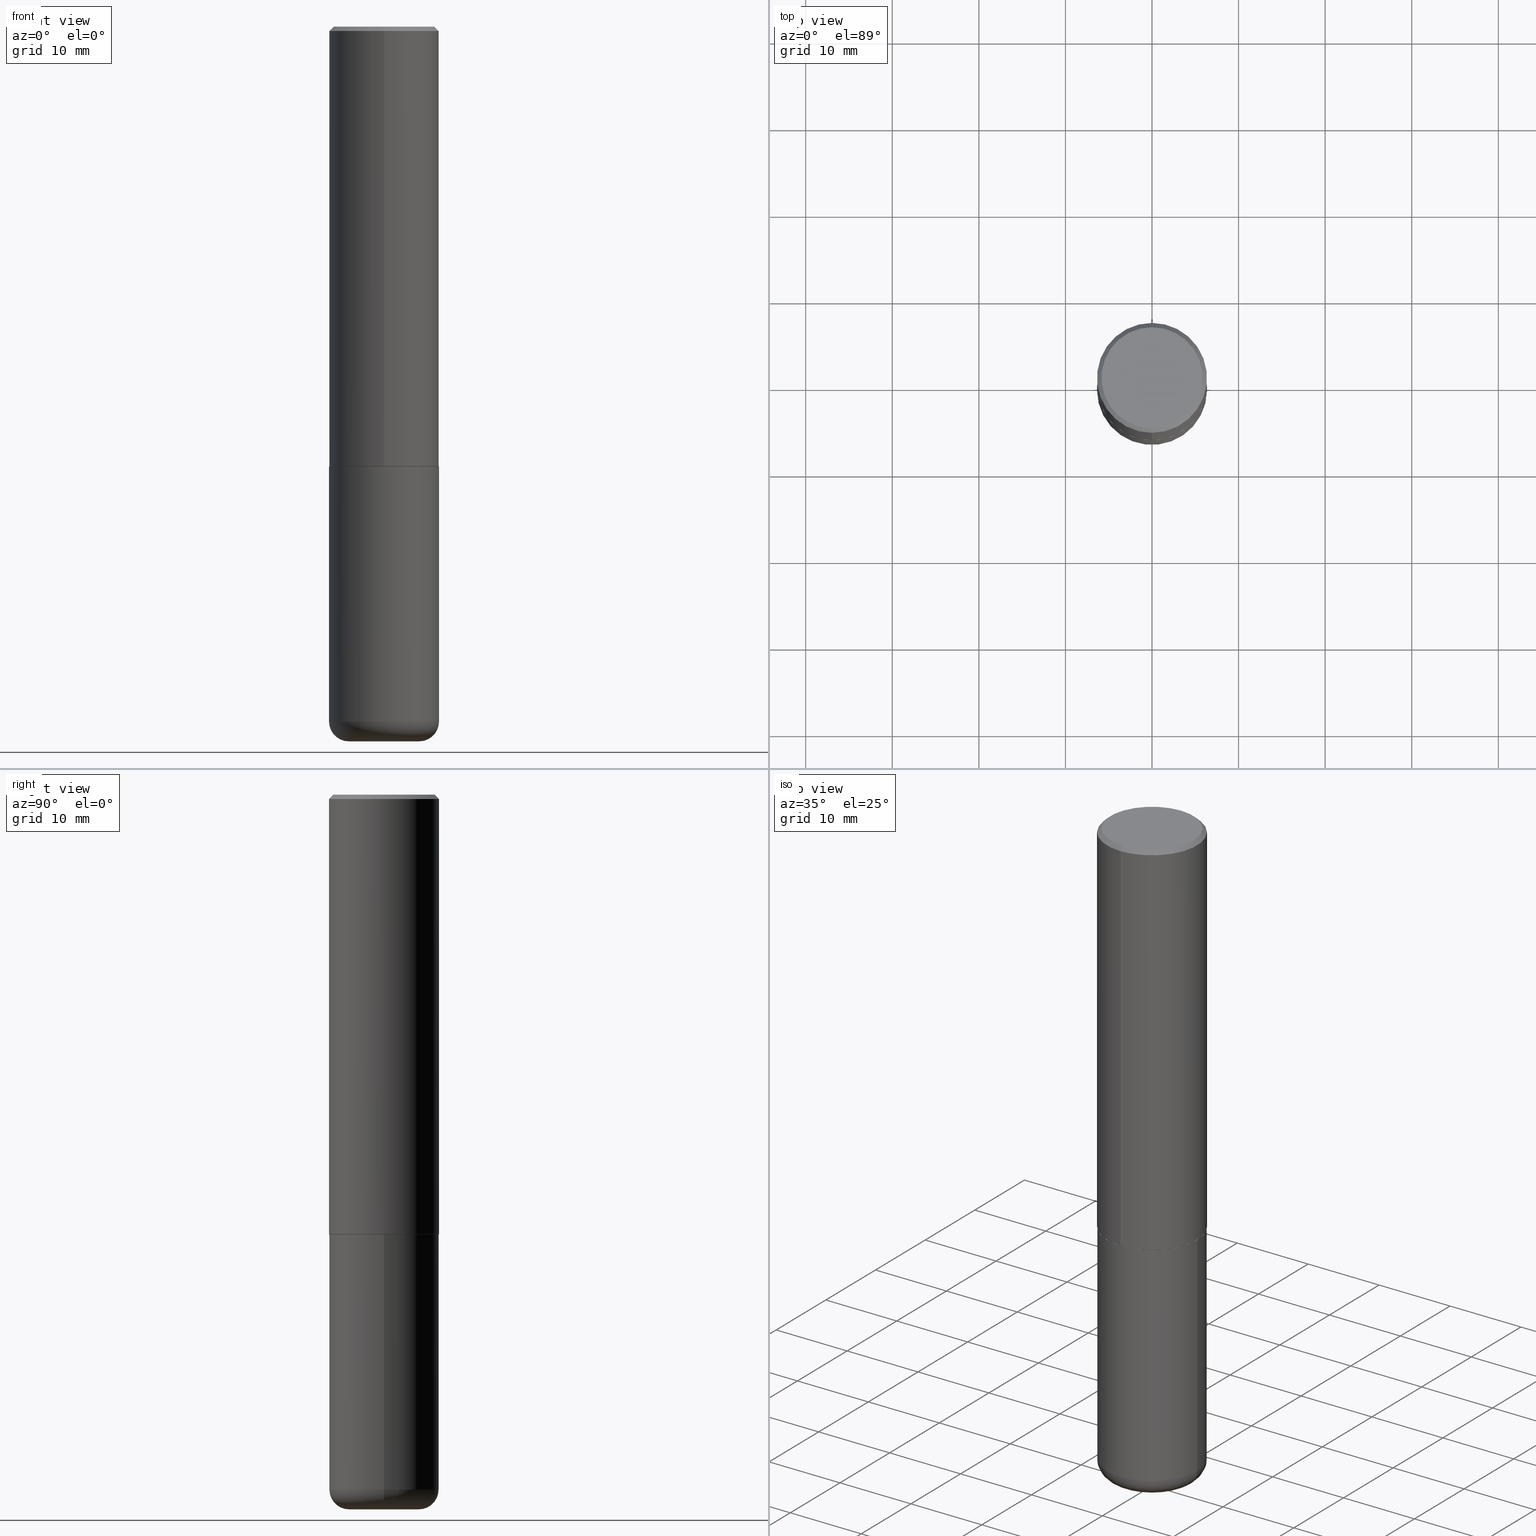
[diagram: canonical four-view strip — front | top / right | iso, engineering-drawing reading convention]
A machine part, canonical four-view strip (front | top / right | iso — engineering-drawing reading convention). The complete STEP part file that produces these views, byte-faithful:
ISO-10303-21;
HEADER;
FILE_DESCRIPTION (( 'STEP AP203' ),
    '1' );
FILE_NAME ('36612.STEP',
    '2024-03-01T16:58:26',
    ( '' ),
    ( '' ),
    'SwSTEP 2.0',
    'SolidWorks 2023',
    '' );
FILE_SCHEMA (( 'CONFIG_CONTROL_DESIGN' ));
ENDSEC;

DATA;
#1 = CARTESIAN_POINT ( 'NONE',  ( 0.000000000000000000, 0.000000000000000000, 0.000000000000000000 ) ) ;
#2 = EDGE_CURVE ( 'NONE', #13, #339, #274, .T. ) ;
#3 = APPLICATION_CONTEXT ( 'configuration controlled 3d designs of mechanical parts and assemblies' ) ;
#4 = DIRECTION ( 'NONE',  ( -6.982962677686266711E-15, -1.000000000000000000, 3.494126405222933371E-15 ) ) ;
#5 = ORIENTED_EDGE ( 'NONE', *, *, #278, .F. ) ;
#6 = CIRCLE ( 'NONE', #346, 0.1600000000000000033 ) ;
#7 = ORGANIZATION ( 'UNSPECIFIED', 'UNSPECIFIED', '' ) ;
#8 = EDGE_LOOP ( 'NONE', ( #305, #44, #117, #342 ) ) ;
#9 = CARTESIAN_POINT ( 'NONE',  ( 1.776356839400276103E-15, 0.2499999999999932276, -1.999000000000000776 ) ) ;
#10 = ORIENTED_EDGE ( 'NONE', *, *, #153, .T. ) ;
#11 = AXIS2_PLACEMENT_3D ( 'NONE', #387, #326, #294 ) ;
#12 = CIRCLE ( 'NONE', #359, 0.1600000000000000033 ) ;
#13 = VERTEX_POINT ( 'NONE', #133 ) ;
#14 = EDGE_LOOP ( 'NONE', ( #312, #29, #80, #74 ) ) ;
#15 = DIRECTION ( 'NONE',  ( -2.443621766204130368E-29, 3.494126405222933371E-15, 1.000000000000000000 ) ) ;
#16 = ORIENTED_EDGE ( 'NONE', *, *, #26, .F. ) ;
#17 = CARTESIAN_POINT ( 'NONE',  ( -1.738757706743831360E-15, -0.2490000000000069935, -1.999999999999999112 ) ) ;
#18 = PRODUCT_DEFINITION ( 'UNKNOWN', '', #57, #119 ) ;
#19 = CARTESIAN_POINT ( 'NONE',  ( 1.675911042644704366E-15, 0.2300000000000000377, -7.987721954438231638E-16 ) ) ;
#20 = FACE_OUTER_BOUND ( 'NONE', #335, .T. ) ;
#21 = DIRECTION ( 'NONE',  ( 0.000000000000000000, 0.000000000000000000, 1.000000000000000000 ) ) ;
#22 = CARTESIAN_POINT ( 'NONE',  ( 4.887243532408272857E-31, -6.988252810445882815E-17, -0.02000000000000004552 ) ) ;
#23 = CIRCLE ( 'NONE', #94, 0.2500000000000000555 ) ;
#24 = LOCAL_TIME ( 11, 58, 26.00000000000000000, #95 ) ;
#25 = DIRECTION ( 'NONE',  ( 2.438088387897960049E-29, -3.491481338843145188E-15, -1.000000000000000000 ) ) ;
#26 = EDGE_CURVE ( 'NONE', #279, #315, #327, .T. ) ;
#27 = APPROVAL_STATUS ( 'not_yet_approved' ) ;
#28 = LINE ( 'NONE', #73, #317 ) ;
#29 = ORIENTED_EDGE ( 'NONE', *, *, #287, .T. ) ;
#30 = ADVANCED_FACE ( 'NONE', ( #61 ), #378, .T. ) ;
#31 =( LENGTH_UNIT ( ) NAMED_UNIT ( * ) SI_UNIT ( $, .METRE. ) );
#32 = DIRECTION ( 'NONE',  ( -6.982962677686265133E-15, -1.000000000000000000, 3.500180241882336472E-15 ) ) ;
#33 = DATE_AND_TIME ( #68, #213 ) ;
#34 = AXIS2_PLACEMENT_3D ( 'NONE', #405, #281, #81 ) ;
#35 = FACE_OUTER_BOUND ( 'NONE', #374, .T. ) ;
#36 = APPROVAL_PERSON_ORGANIZATION ( #195, #114, #406 ) ;
#37 = DIRECTION ( 'NONE',  ( -2.445468806185136597E-29, 3.491481338843145583E-15, 1.000000000000000000 ) ) ;
#38 = ADVANCED_FACE ( 'NONE', ( #161 ), #165, .T. ) ;
#39 = CARTESIAN_POINT ( 'NONE',  ( -1.745740669421519346E-15, -0.2500000000000072164, -1.998999999999999000 ) ) ;
#40 = DIRECTION ( 'NONE',  ( -2.443621766204130368E-29, 3.494126405222933371E-15, 1.000000000000000000 ) ) ;
#41 = TOROIDAL_SURFACE ( 'NONE', #302, 0.1600000000000000033, 0.08999999999999967748 ) ;
#42 = CC_DESIGN_APPROVAL ( #217, ( #270 ) ) ;
#43 = LOCAL_TIME ( 11, 58, 26.00000000000000000, #412 ) ;
#44 = ORIENTED_EDGE ( 'NONE', *, *, #396, .T. ) ;
#45 = VERTEX_POINT ( 'NONE', #190 ) ;
#46 = ADVANCED_FACE ( 'NONE', ( #320 ), #154, .T. ) ;
#47 = ORIENTED_EDGE ( 'NONE', *, *, #417, .T. ) ;
#48 = CARTESIAN_POINT ( 'NONE',  ( 4.890937612370273194E-29, -6.982962677686291165E-15, -2.000000000000000000 ) ) ;
#49 = CIRCLE ( 'NONE', #228, 0.08999999999999964972 ) ;
#50 = ORIENTED_EDGE ( 'NONE', *, *, #299, .T. ) ;
#51 = AXIS2_PLACEMENT_3D ( 'NONE', #97, #21, #189 ) ;
#52 = DIRECTION ( 'NONE',  ( -2.445468806185136597E-29, 3.491481338843145583E-15, 1.000000000000000000 ) ) ;
#53 = VERTEX_POINT ( 'NONE', #350 ) ;
#54 = DIRECTION ( 'NONE',  ( -6.982962677686265922E-15, -1.000000000000000000, 3.494126405222933371E-15 ) ) ;
#55 = LINE ( 'NONE', #347, #227 ) ;
#56 = AXIS2_PLACEMENT_3D ( 'NONE', #1, #69, #188 ) ;
#57 = PRODUCT_DEFINITION_FORMATION_WITH_SPECIFIED_SOURCE ( 'ANY', '', #183, .NOT_KNOWN. ) ;
#58 = DIRECTION ( 'NONE',  ( -6.982962677686265133E-15, -1.000000000000000000, 3.291383124896702687E-15 ) ) ;
#59 = PERSON_AND_ORGANIZATION_ROLE ( 'classification_officer' ) ;
#60 = DIMENSIONAL_EXPONENTS ( 1.000000000000000000, 0.000000000000000000, 0.000000000000000000, 0.000000000000000000, 0.000000000000000000, 0.000000000000000000, 0.000000000000000000 ) ;
#61 = FACE_OUTER_BOUND ( 'NONE', #111, .T. ) ;
#62 = CARTESIAN_POINT ( 'NONE',  ( 4.884799910642056120E-29, -6.984758684040643933E-15, -1.998999999999999888 ) ) ;
#63 = EDGE_LOOP ( 'NONE', ( #146, #109 ) ) ;
#64 = CIRCLE ( 'NONE', #140, 0.2500000000000000555 ) ;
#65 = PERSON_AND_ORGANIZATION_ROLE ( 'design_supplier' ) ;
#66 = CARTESIAN_POINT ( 'NONE',  ( 0.1600000000000000033, -1.246458837967002615E-14, -3.249999999999999556 ) ) ;
#67 = ADVANCED_FACE ( 'NONE', ( #35 ), #250, .T. ) ;
#68 = CALENDAR_DATE ( 2024, 1, 3 ) ;
#69 = DIRECTION ( 'NONE',  ( -2.445468806185136597E-29, 3.491481338843145583E-15, 1.000000000000000000 ) ) ;
#70 = DIRECTION ( 'NONE',  ( 1.000000000000000000, -6.982962677686266711E-15, 4.876176775795935793E-29 ) ) ;
#71 = AXIS2_PLACEMENT_3D ( 'NONE', #200, #169, #306 ) ;
#72 = EDGE_CURVE ( 'NONE', #172, #136, #328, .T. ) ;
#73 = CARTESIAN_POINT ( 'NONE',  ( -0.2500000000000000000, 1.776356839400250465E-15, -1.229733772563726445E-29 ) ) ;
#74 = ORIENTED_EDGE ( 'NONE', *, *, #232, .F. ) ;
#75 = CARTESIAN_POINT ( 'NONE',  ( 4.887243532408272857E-31, -6.988252810445882815E-17, -0.02000000000000004552 ) ) ;
#76 = ORIENTED_EDGE ( 'NONE', *, *, #234, .T. ) ;
#77 = FACE_OUTER_BOUND ( 'NONE', #401, .T. ) ;
#78 = ORIENTED_EDGE ( 'NONE', *, *, #376, .T. ) ;
#79 = EDGE_CURVE ( 'NONE', #247, #13, #196, .T. ) ;
#80 = ORIENTED_EDGE ( 'NONE', *, *, #259, .T. ) ;
#81 = DIRECTION ( 'NONE',  ( 6.982962677686265922E-15, 1.000000000000000000, -3.494126405222933371E-15 ) ) ;
#82 = VECTOR ( 'NONE', #271, 39.37007874015748143 ) ;
#83 = ORIENTED_EDGE ( 'NONE', *, *, #330, .T. ) ;
#84 = LINE ( 'NONE', #121, #255 ) ;
#85 = CARTESIAN_POINT ( 'NONE',  ( 4.890937612370273194E-29, -6.982962677686291165E-15, -2.000000000000000000 ) ) ;
#86 = AXIS2_PLACEMENT_3D ( 'NONE', #130, #261, #389 ) ;
#87 = VECTOR ( 'NONE', #343, 39.37007874015748143 ) ;
#88 = APPROVAL_DATE_TIME ( #33, #269 ) ;
#89 = ORIENTED_EDGE ( 'NONE', *, *, #234, .F. ) ;
#90 = APPROVAL_STATUS ( 'not_yet_approved' ) ;
#91 = CARTESIAN_POINT ( 'NONE',  ( 7.947773620101692818E-29, -1.134731435124022127E-14, -3.249999999999999556 ) ) ;
#92 = PERSON_AND_ORGANIZATION_ROLE ( 'creator' ) ;
#93 = CARTESIAN_POINT ( 'NONE',  ( -0.1600000000000000033, -9.733585082684075330E-15, -3.249999999999999556 ) ) ;
#94 = AXIS2_PLACEMENT_3D ( 'NONE', #388, #156, #152 ) ;
#95 = COORDINATED_UNIVERSAL_TIME_OFFSET ( 5, 0, .BEHIND. ) ;
#96 = CARTESIAN_POINT ( 'NONE',  ( 0.1600000000000000033, -1.215035505917414131E-14, -3.160000000000000142 ) ) ;
#97 = CARTESIAN_POINT ( 'NONE',  ( 0.000000000000000000, 0.000000000000000000, 0.000000000000000000 ) ) ;
#98 = DIRECTION ( 'NONE',  ( -2.443621766204130368E-29, 3.494126405222933371E-15, 1.000000000000000000 ) ) ;
#99 = ADVANCED_FACE ( 'NONE', ( #197 ), #264, .T. ) ;
#100 = CIRCLE ( 'NONE', #332, 0.2500000000000000000 ) ;
#101 = LINE ( 'NONE', #300, #82 ) ;
#102 = ORIENTED_EDGE ( 'NONE', *, *, #79, .F. ) ;
#103 = ADVANCED_BREP_SHAPE_REPRESENTATION ( '36612', ( #380, #375, #51 ), #163 ) ;
#104 = VERTEX_POINT ( 'NONE', #356 ) ;
#105 = CALENDAR_DATE ( 2024, 1, 3 ) ;
#106 = ORIENTED_EDGE ( 'NONE', *, *, #299, .F. ) ;
#107 = CLOSED_SHELL ( 'NONE', ( #135, #30, #318, #38, #256, #99 ) ) ;
#108 = AXIS2_PLACEMENT_3D ( 'NONE', #62, #254, #187 ) ;
#109 = ORIENTED_EDGE ( 'NONE', *, *, #153, .F. ) ;
#110 = FACE_OUTER_BOUND ( 'NONE', #307, .T. ) ;
#111 = EDGE_LOOP ( 'NONE', ( #360, #50, #138, #272 ) ) ;
#112 = CARTESIAN_POINT ( 'NONE',  ( -1.191724463922560587E-46, 1.704042734735616643E-32, 4.876877757451635874E-18 ) ) ;
#113 = ORIENTED_EDGE ( 'NONE', *, *, #79, .T. ) ;
#114 = APPROVAL ( #90, 'UNSPECIFIED' ) ;
#115 = DIRECTION ( 'NONE',  ( -6.982962677686266711E-15, -1.000000000000000000, 3.278217592397113101E-15 ) ) ;
#116 = CIRCLE ( 'NONE', #393, 0.2500000000000000555 ) ;
#117 = ORIENTED_EDGE ( 'NONE', *, *, #122, .T. ) ;
#118 = CC_DESIGN_APPROVAL ( #114, ( #57 ) ) ;
#119 = DESIGN_CONTEXT ( 'detailed design', #151, 'design' ) ;
#120 = DIRECTION ( 'NONE',  ( 5.024295867788490741E-15, 0.7071067811866103003, 0.7071067811864847341 ) ) ;
#121 = CARTESIAN_POINT ( 'NONE',  ( -1.715124499442882496E-15, -0.2500000000000001110, -0.01999999999999917122 ) ) ;
#122 = EDGE_CURVE ( 'NONE', #339, #13, #64, .T. ) ;
#123 = DATE_AND_TIME ( #260, #310 ) ;
#124 = CC_DESIGN_DATE_AND_TIME_ASSIGNMENT ( #408, #336, ( #270 ) ) ;
#125 = AXIS2_PLACEMENT_3D ( 'NONE', #22, #265, #132 ) ;
#126 = CARTESIAN_POINT ( 'NONE',  ( 0.000000000000000000, 0.000000000000000000, 0.000000000000000000 ) ) ;
#127 = PERSON_AND_ORGANIZATION ( #334, #7 ) ;
#128 = CARTESIAN_POINT ( 'NONE',  ( 0.2499999999999998612, -1.277882170016590626E-14, -3.160000000000000142 ) ) ;
#129 = MECHANICAL_CONTEXT ( 'NONE', #3, 'mechanical' ) ;
#130 = CARTESIAN_POINT ( 'NONE',  ( 4.887243532408272857E-31, -6.988252810445882815E-17, -0.02000000000000004552 ) ) ;
#131 = AXIS2_PLACEMENT_3D ( 'NONE', #112, #341, #377 ) ;
#132 = DIRECTION ( 'NONE',  ( 6.982962677686265133E-15, 1.000000000000000000, -3.500180241882336472E-15 ) ) ;
#133 = CARTESIAN_POINT ( 'NONE',  ( 1.745740669421567269E-15, 0.2499999999999999722, -0.02000000000000092329 ) ) ;
#134 = EDGE_CURVE ( 'NONE', #136, #45, #23, .T. ) ;
#135 = ADVANCED_FACE ( 'NONE', ( #258 ), #357, .T. ) ;
#136 = VERTEX_POINT ( 'NONE', #128 ) ;
#137 = PRODUCT_RELATED_PRODUCT_CATEGORY ( 'detail', '', ( #183 ) ) ;
#138 = ORIENTED_EDGE ( 'NONE', *, *, #134, .F. ) ;
#139 = AXIS2_PLACEMENT_3D ( 'NONE', #159, #262, #290 ) ;
#140 = AXIS2_PLACEMENT_3D ( 'NONE', #324, #98, #32 ) ;
#141 = ORIENTED_EDGE ( 'NONE', *, *, #2, .F. ) ;
#142 = FACE_OUTER_BOUND ( 'NONE', #177, .T. ) ;
#143 = VERTEX_POINT ( 'NONE', #93 ) ;
#144 = APPROVAL_DATE_TIME ( #267, #217 ) ;
#145 = CARTESIAN_POINT ( 'NONE',  ( -1.715124499442882496E-15, -0.2500000000000001110, -0.01999999999999917122 ) ) ;
#146 = ORIENTED_EDGE ( 'NONE', *, *, #223, .F. ) ;
#147 = CARTESIAN_POINT ( 'NONE',  ( 1.745740669421567269E-15, 0.2499999999999999722, -0.02000000000000092329 ) ) ;
#148 = ADVANCED_FACE ( 'NONE', ( #409 ), #226, .T. ) ;
#149 = PLANE ( 'NONE',  #340 ) ;
#150 = COORDINATED_UNIVERSAL_TIME_OFFSET ( 5, 0, .BEHIND. ) ;
#151 = APPLICATION_CONTEXT ( 'configuration controlled 3d designs of mechanical parts and assemblies' ) ;
#152 = DIRECTION ( 'NONE',  ( 1.000000000000000000, -6.982962677686269077E-15, 0.000000000000000000 ) ) ;
#153 = EDGE_CURVE ( 'NONE', #143, #172, #12, .T. ) ;
#154 = CONICAL_SURFACE ( 'NONE', #416, 0.2489999999999999991, 0.7853981633975336552 ) ;
#155 =( CONVERSION_BASED_UNIT ( 'INCH', #230 ) LENGTH_UNIT ( ) NAMED_UNIT ( #60 ) );
#156 = DIRECTION ( 'NONE',  ( -2.445468806185136597E-29, 3.491481338843145583E-15, 1.000000000000000000 ) ) ;
#157 = CC_DESIGN_PERSON_AND_ORGANIZATION_ASSIGNMENT ( #292, #59, ( #270 ) ) ;
#158 = SECURITY_CLASSIFICATION_LEVEL ( 'unclassified' ) ;
#159 = CARTESIAN_POINT ( 'NONE',  ( 4.887243532408260736E-29, -6.988252810445867531E-15, -2.000000000000000000 ) ) ;
#160 = ORIENTED_EDGE ( 'NONE', *, *, #278, .T. ) ;
#161 = FACE_OUTER_BOUND ( 'NONE', #14, .T. ) ;
#162 = AXIS2_PLACEMENT_3D ( 'NONE', #329, #40, #331 ) ;
#163 =( GEOMETRIC_REPRESENTATION_CONTEXT ( 3 ) GLOBAL_UNCERTAINTY_ASSIGNED_CONTEXT ( ( #248 ) ) GLOBAL_UNIT_ASSIGNED_CONTEXT ( ( #155, #383, #385 ) ) REPRESENTATION_CONTEXT ( 'NONE', 'WORKASPACE' ) );
#164 = APPROVAL_STATUS ( 'not_yet_approved' ) ;
#165 = CYLINDRICAL_SURFACE ( 'NONE', #56, 0.2500000000000000000 ) ;
#166 = DIRECTION ( 'NONE',  ( -2.443621766204130368E-29, 3.494126405222933371E-15, 1.000000000000000000 ) ) ;
#167 = PERSON_AND_ORGANIZATION ( #334, #7 ) ;
#168 = VECTOR ( 'NONE', #411, 39.37007874015748143 ) ;
#169 = DIRECTION ( 'NONE',  ( -2.445468806185136597E-29, 3.491481338843145583E-15, 1.000000000000000000 ) ) ;
#170 = ORIENTED_EDGE ( 'NONE', *, *, #372, .F. ) ;
#171 = DIRECTION ( 'NONE',  ( -2.445468806185136877E-29, 3.491481338843145188E-15, 1.000000000000000000 ) ) ;
#172 = VERTEX_POINT ( 'NONE', #66 ) ;
#173 = EDGE_LOOP ( 'NONE', ( #102, #78, #245, #141 ) ) ;
#174 = DIRECTION ( 'NONE',  ( 7.105427357601001859E-15, 1.000000000000000000, -3.491481338843145583E-15 ) ) ;
#175 = AXIS2_PLACEMENT_3D ( 'NONE', #298, #166, #4 ) ;
#176 = LOCAL_TIME ( 11, 58, 26.00000000000000000, #303 ) ;
#177 = EDGE_LOOP ( 'NONE', ( #16, #89 ) ) ;
#178 = DIRECTION ( 'NONE',  ( -2.443621766204130648E-29, 3.494126405222933371E-15, 1.000000000000000000 ) ) ;
#179 = EDGE_CURVE ( 'NONE', #45, #104, #28, .T. ) ;
#180 = ORIENTED_EDGE ( 'NONE', *, *, #134, .T. ) ;
#181 = LINE ( 'NONE', #316, #284 ) ;
#182 = DIRECTION ( 'NONE',  ( 2.443621766204130368E-29, -3.494126405222933371E-15, -1.000000000000000000 ) ) ;
#183 = PRODUCT ( '36612', '36612', '', ( #129 ) ) ;
#184 = CLOSED_SHELL ( 'NONE', ( #348, #208, #266, #67, #148, #46, #291, #308 ) ) ;
#185 = CONICAL_SURFACE ( 'NONE', #403, 0.2500000000000000555, 0.7853981633974468357 ) ;
#186 = CARTESIAN_POINT ( 'NONE',  ( 7.727681427545032274E-29, -1.103308103074433958E-14, -3.160000000000000142 ) ) ;
#187 = DIRECTION ( 'NONE',  ( -6.982962677686266711E-15, -1.000000000000000000, 3.278217592397113101E-15 ) ) ;
#188 = DIRECTION ( 'NONE',  ( 1.000000000000000000, -6.982962677686266711E-15, 4.876176775795935793E-29 ) ) ;
#189 = DIRECTION ( 'NONE',  ( 1.000000000000000000, 0.000000000000000000, 0.000000000000000000 ) ) ;
#190 = CARTESIAN_POINT ( 'NONE',  ( -0.2499999999999998612, -9.256724191344090697E-15, -3.160000000000000142 ) ) ;
#191 = CC_DESIGN_PERSON_AND_ORGANIZATION_ASSIGNMENT ( #288, #92, ( #18 ) ) ;
#192 = AXIS2_PLACEMENT_3D ( 'NONE', #289, #384, #70 ) ;
#193 = PERSON_AND_ORGANIZATION_ROLE ( 'design_owner' ) ;
#194 = DIRECTION ( 'NONE',  ( -2.443621766204130368E-29, 3.494126405222933371E-15, 1.000000000000000000 ) ) ;
#195 = PERSON_AND_ORGANIZATION ( #334, #7 ) ;
#196 = LINE ( 'NONE', #297, #168 ) ;
#197 = FACE_OUTER_BOUND ( 'NONE', #63, .T. ) ;
#198 = AXIS2_PLACEMENT_3D ( 'NONE', #96, #418, #352 ) ;
#199 = APPROVAL_ROLE ( '' ) ;
#200 = CARTESIAN_POINT ( 'NONE',  ( 4.890937612370273194E-29, -6.982962677686291165E-15, -2.000000000000000000 ) ) ;
#201 = FACE_OUTER_BOUND ( 'NONE', #309, .T. ) ;
#202 = VERTEX_POINT ( 'NONE', #236 ) ;
#203 = CONICAL_SURFACE ( 'NONE', #263, 0.2489999999999999991, 0.7853981633975336552 ) ;
#204 = CC_DESIGN_SECURITY_CLASSIFICATION ( #270, ( #57 ) ) ;
#205 = ORIENTED_EDGE ( 'NONE', *, *, #242, .F. ) ;
#206 = DIRECTION ( 'NONE',  ( -2.445468806185136597E-29, 3.491481338843145583E-15, 1.000000000000000000 ) ) ;
#207 = VERTEX_POINT ( 'NONE', #39 ) ;
#208 = ADVANCED_FACE ( 'NONE', ( #201 ), #361, .T. ) ;
#209 = DIRECTION ( 'NONE',  ( 6.982962677686265133E-15, 1.000000000000000000, -3.500180241882336472E-15 ) ) ;
#210 = ORIENTED_EDGE ( 'NONE', *, *, #26, .T. ) ;
#211 = DIRECTION ( 'NONE',  ( 2.438088387897960049E-29, -3.491481338843145188E-15, -1.000000000000000000 ) ) ;
#212 = AXIS2_PLACEMENT_3D ( 'NONE', #222, #25, #231 ) ;
#213 = LOCAL_TIME ( 11, 58, 26.00000000000000000, #150 ) ;
#214 = EDGE_LOOP ( 'NONE', ( #370, #76, #368, #243 ) ) ;
#215 = LINE ( 'NONE', #17, #386 ) ;
#216 = DIRECTION ( 'NONE',  ( -4.851104656540956386E-15, -0.7071067811865489050, -0.7071067811865461294 ) ) ;
#217 = APPROVAL ( #164, 'UNSPECIFIED' ) ;
#218 = DIRECTION ( 'NONE',  ( -2.443621766204130368E-29, 3.494126405222933371E-15, 1.000000000000000000 ) ) ;
#219 = AXIS2_PLACEMENT_3D ( 'NONE', #344, #395, #54 ) ;
#220 = CC_DESIGN_APPROVAL ( #269, ( #18 ) ) ;
#221 = PERSON_AND_ORGANIZATION ( #334, #7 ) ;
#222 = CARTESIAN_POINT ( 'NONE',  ( 1.569755810607999452E-28, -2.491818769791448206E-16, -3.249999999999999556 ) ) ;
#223 = EDGE_CURVE ( 'NONE', #172, #143, #6, .T. ) ;
#224 = DIRECTION ( 'NONE',  ( 1.000000000000000000, -6.982962677686271444E-15, 0.000000000000000000 ) ) ;
#225 = APPROVAL_DATE_TIME ( #123, #114 ) ;
#226 = CYLINDRICAL_SURFACE ( 'NONE', #240, 0.2500000000000001110 ) ;
#227 = VECTOR ( 'NONE', #178, 39.37007874015748143 ) ;
#228 = AXIS2_PLACEMENT_3D ( 'NONE', #399, #174, #319 ) ;
#229 = SHAPE_DEFINITION_REPRESENTATION ( #398, #103 ) ;
#230 = LENGTH_MEASURE_WITH_UNIT ( LENGTH_MEASURE( 0.02539999999999999897 ), #31 );
#231 = DIRECTION ( 'NONE',  ( -1.000000000000000000, 6.982962677686265922E-15, -4.876176775795935793E-29 ) ) ;
#232 = EDGE_CURVE ( 'NONE', #104, #53, #268, .T. ) ;
#233 = DIRECTION ( 'NONE',  ( -6.982962677686265133E-15, -1.000000000000000000, 3.291383124896702687E-15 ) ) ;
#234 = EDGE_CURVE ( 'NONE', #315, #279, #407, .T. ) ;
#235 = CIRCLE ( 'NONE', #162, 0.2300000000000000377 ) ;
#236 = CARTESIAN_POINT ( 'NONE',  ( -1.646519519465167559E-15, -0.2300000000000000377, 8.085259509587265064E-16 ) ) ;
#237 = CARTESIAN_POINT ( 'NONE',  ( 7.727681427545032274E-29, -1.103308103074433958E-14, -3.160000000000000142 ) ) ;
#238 = DIRECTION ( 'NONE',  ( -2.443621766204130368E-29, 3.494126405222933371E-15, 1.000000000000000000 ) ) ;
#239 = ORIENTED_EDGE ( 'NONE', *, *, #379, .T. ) ;
#240 = AXIS2_PLACEMENT_3D ( 'NONE', #126, #194, #381 ) ;
#241 = CARTESIAN_POINT ( 'NONE',  ( 4.887243532408260736E-29, -6.988252810445867531E-15, -2.000000000000000000 ) ) ;
#242 = EDGE_CURVE ( 'NONE', #394, #202, #235, .T. ) ;
#243 = ORIENTED_EDGE ( 'NONE', *, *, #376, .F. ) ;
#244 = DIRECTION ( 'NONE',  ( -1.000000000000000000, 6.982962677686265922E-15, -4.876176775795935793E-29 ) ) ;
#245 = ORIENTED_EDGE ( 'NONE', *, *, #345, .T. ) ;
#246 = CC_DESIGN_PERSON_AND_ORGANIZATION_ASSIGNMENT ( #221, #349, ( #57 ) ) ;
#247 = VERTEX_POINT ( 'NONE', #9 ) ;
#248 = UNCERTAINTY_MEASURE_WITH_UNIT (LENGTH_MEASURE( 1.000000000000000082E-05 ), #155, 'distance_accuracy_value', 'NONE');
#249 = CARTESIAN_POINT ( 'NONE',  ( 4.884799910642056120E-29, -6.984758684040643933E-15, -1.998999999999999888 ) ) ;
#250 = CONICAL_SURFACE ( 'NONE', #125, 0.2500000000000000555, 0.7853981633974468357 ) ;
#251 = ORIENTED_EDGE ( 'NONE', *, *, #179, .T. ) ;
#252 = DIRECTION ( 'NONE',  ( -2.445468806185136597E-29, 3.491481338843145583E-15, 1.000000000000000000 ) ) ;
#253 = CARTESIAN_POINT ( 'NONE',  ( 1.772804125721499264E-15, 0.2489999999999930047, -2.000000000000000888 ) ) ;
#254 = DIRECTION ( 'NONE',  ( -2.443621766204130368E-29, 3.494126405222933371E-15, 1.000000000000000000 ) ) ;
#255 = VECTOR ( 'NONE', #216, 39.37007874015748143 ) ;
#256 = ADVANCED_FACE ( 'NONE', ( #77 ), #41, .T. ) ;
#257 = APPROVAL_ROLE ( '' ) ;
#258 = FACE_OUTER_BOUND ( 'NONE', #392, .T. ) ;
#259 = EDGE_CURVE ( 'NONE', #136, #53, #101, .T. ) ;
#260 = CALENDAR_DATE ( 2024, 1, 3 ) ;
#261 = DIRECTION ( 'NONE',  ( -2.443621766204130368E-29, 3.494126405222933371E-15, 1.000000000000000000 ) ) ;
#262 = DIRECTION ( 'NONE',  ( -2.443621766204130368E-29, 3.494126405222933371E-15, 1.000000000000000000 ) ) ;
#263 = AXIS2_PLACEMENT_3D ( 'NONE', #285, #218, #58 ) ;
#264 = PLANE ( 'NONE',  #212 ) ;
#265 = DIRECTION ( 'NONE',  ( 2.443621766204130368E-29, -3.494126405222933371E-15, -1.000000000000000000 ) ) ;
#266 = ADVANCED_FACE ( 'NONE', ( #304 ), #185, .T. ) ;
#267 = DATE_AND_TIME ( #105, #176 ) ;
#268 = CIRCLE ( 'NONE', #71, 0.2500000000000000000 ) ;
#269 = APPROVAL ( #27, 'UNSPECIFIED' ) ;
#270 = SECURITY_CLASSIFICATION ( '', '', #158 ) ;
#271 = DIRECTION ( 'NONE',  ( -2.445468806185136877E-29, 3.491481338843145188E-15, 1.000000000000000000 ) ) ;
#272 = ORIENTED_EDGE ( 'NONE', *, *, #72, .F. ) ;
#273 = ORIENTED_EDGE ( 'NONE', *, *, #232, .T. ) ;
#274 = CIRCLE ( 'NONE', #86, 0.2500000000000000555 ) ;
#275 = CIRCLE ( 'NONE', #363, 0.2500000000000002220 ) ;
#276 = APPROVAL_PERSON_ORGANIZATION ( #167, #217, #199 ) ;
#277 = DIRECTION ( 'NONE',  ( 1.000000000000000000, -6.982962677686271444E-15, 0.000000000000000000 ) ) ;
#278 = EDGE_CURVE ( 'NONE', #53, #104, #100, .T. ) ;
#279 = VERTEX_POINT ( 'NONE', #283 ) ;
#280 = ORIENTED_EDGE ( 'NONE', *, *, #287, .F. ) ;
#281 = DIRECTION ( 'NONE',  ( 2.443621766204130088E-29, -3.494126405222933371E-15, -1.000000000000000000 ) ) ;
#282 = ORIENTED_EDGE ( 'NONE', *, *, #72, .T. ) ;
#283 = CARTESIAN_POINT ( 'NONE',  ( -1.738757706743831360E-15, -0.2490000000000069935, -1.999999999999999112 ) ) ;
#284 = VECTOR ( 'NONE', #120, 39.37007874015748143 ) ;
#285 = CARTESIAN_POINT ( 'NONE',  ( 4.887243532408260736E-29, -6.988252810445867531E-15, -2.000000000000000000 ) ) ;
#286 = CALENDAR_DATE ( 2024, 1, 3 ) ;
#287 = EDGE_CURVE ( 'NONE', #45, #136, #116, .T. ) ;
#288 = PERSON_AND_ORGANIZATION ( #334, #7 ) ;
#289 = CARTESIAN_POINT ( 'NONE',  ( 0.000000000000000000, 0.000000000000000000, 0.000000000000000000 ) ) ;
#290 = DIRECTION ( 'NONE',  ( -6.982962677686265133E-15, -1.000000000000000000, 3.291383124896702687E-15 ) ) ;
#291 = ADVANCED_FACE ( 'NONE', ( #142 ), #311, .F. ) ;
#292 = PERSON_AND_ORGANIZATION ( #334, #7 ) ;
#293 = EDGE_LOOP ( 'NONE', ( #210, #301, #397, #170 ) ) ;
#294 = DIRECTION ( 'NONE',  ( 1.000000000000000000, -6.982962677686265133E-15, 4.883557194083112340E-29 ) ) ;
#295 = AXIS2_PLACEMENT_3D ( 'NONE', #241, #238, #365 ) ;
#296 = CIRCLE ( 'NONE', #108, 0.2500000000000002220 ) ;
#297 = CARTESIAN_POINT ( 'NONE',  ( 1.776356839400251254E-15, 0.2500000000000001110, -8.735316013057337372E-16 ) ) ;
#298 = CARTESIAN_POINT ( 'NONE',  ( 0.000000000000000000, 0.000000000000000000, 0.000000000000000000 ) ) ;
#299 = EDGE_CURVE ( 'NONE', #143, #45, #49, .T. ) ;
#300 = CARTESIAN_POINT ( 'NONE',  ( 0.2500000000000000000, -1.745740669421566678E-15, 1.219044193948983948E-29 ) ) ;
#301 = ORIENTED_EDGE ( 'NONE', *, *, #391, .T. ) ;
#302 = AXIS2_PLACEMENT_3D ( 'NONE', #237, #37, #390 ) ;
#303 = COORDINATED_UNIVERSAL_TIME_OFFSET ( 5, 0, .BEHIND. ) ;
#304 = FACE_OUTER_BOUND ( 'NONE', #8, .T. ) ;
#305 = ORIENTED_EDGE ( 'NONE', *, *, #330, .F. ) ;
#306 = DIRECTION ( 'NONE',  ( 1.000000000000000000, -6.982962677686266711E-15, 0.000000000000000000 ) ) ;
#307 = EDGE_LOOP ( 'NONE', ( #160, #273 ) ) ;
#308 = ADVANCED_FACE ( 'NONE', ( #20 ), #369, .F. ) ;
#309 = EDGE_LOOP ( 'NONE', ( #47, #113, #400, #414 ) ) ;
#310 = LOCAL_TIME ( 11, 58, 26.00000000000000000, #351 ) ;
#311 = PLANE ( 'NONE',  #219 ) ;
#312 = ORIENTED_EDGE ( 'NONE', *, *, #179, .F. ) ;
#313 = FACE_OUTER_BOUND ( 'NONE', #293, .T. ) ;
#314 = CC_DESIGN_PERSON_AND_ORGANIZATION_ASSIGNMENT ( #127, #193, ( #183 ) ) ;
#315 = VERTEX_POINT ( 'NONE', #253 ) ;
#316 = CARTESIAN_POINT ( 'NONE',  ( 1.769251412042697971E-15, 0.2489999999999930047, -2.000000000000000888 ) ) ;
#317 = VECTOR ( 'NONE', #171, 39.37007874015748143 ) ;
#318 = ADVANCED_FACE ( 'NONE', ( #110 ), #149, .F. ) ;
#319 = DIRECTION ( 'NONE',  ( -1.000000000000000000, 7.105427357600996337E-15, 0.000000000000000000 ) ) ;
#320 = FACE_OUTER_BOUND ( 'NONE', #214, .T. ) ;
#321 = APPLICATION_PROTOCOL_DEFINITION ( 'international standard', 'config_control_design', 1994, #3 ) ;
#322 = DIRECTION ( 'NONE',  ( -2.443621766204130368E-29, 3.494126405222933371E-15, 1.000000000000000000 ) ) ;
#323 = APPLICATION_PROTOCOL_DEFINITION ( 'international standard', 'config_control_design', 1994, #151 ) ;
#324 = CARTESIAN_POINT ( 'NONE',  ( 4.887243532408272857E-31, -6.988252810445882815E-17, -0.02000000000000004552 ) ) ;
#325 = CALENDAR_DATE ( 2024, 1, 3 ) ;
#326 = DIRECTION ( 'NONE',  ( -2.445468806185136597E-29, 3.491481338843145583E-15, 1.000000000000000000 ) ) ;
#327 = CIRCLE ( 'NONE', #139, 0.2489999999999999991 ) ;
#328 = CIRCLE ( 'NONE', #198, 0.08999999999999964972 ) ;
#329 = CARTESIAN_POINT ( 'NONE',  ( -1.191724463922560587E-46, 1.704042734735616643E-32, 4.876877757451635874E-18 ) ) ;
#330 = EDGE_CURVE ( 'NONE', #202, #394, #402, .T. ) ;
#331 = DIRECTION ( 'NONE',  ( -6.982962677686265922E-15, -1.000000000000000000, 3.494126405222933371E-15 ) ) ;
#332 = AXIS2_PLACEMENT_3D ( 'NONE', #85, #52, #338 ) ;
#333 = ORIENTED_EDGE ( 'NONE', *, *, #242, .T. ) ;
#334 = PERSON ( 'UNSPECIFIED', 'UNSPECIFIED', 'UNSPECIFIED', ('UNSPECIFIED'), ('UNSPECIFIED'), ('UNSPECIFIED') ) ;
#335 = EDGE_LOOP ( 'NONE', ( #333, #83 ) ) ;
#336 = DATE_TIME_ROLE ( 'classification_date' ) ;
#337 = ORIENTED_EDGE ( 'NONE', *, *, #2, .T. ) ;
#338 = DIRECTION ( 'NONE',  ( 1.000000000000000000, -6.982962677686266711E-15, 0.000000000000000000 ) ) ;
#339 = VERTEX_POINT ( 'NONE', #145 ) ;
#340 = AXIS2_PLACEMENT_3D ( 'NONE', #48, #211, #244 ) ;
#341 = DIRECTION ( 'NONE',  ( -2.443621766204130368E-29, 3.494126405222933371E-15, 1.000000000000000000 ) ) ;
#342 = ORIENTED_EDGE ( 'NONE', *, *, #379, .F. ) ;
#343 = DIRECTION ( 'NONE',  ( 4.937700262164540154E-15, 0.7071067811865440200, -0.7071067811865510144 ) ) ;
#344 = CARTESIAN_POINT ( 'NONE',  ( 4.887243532408260736E-29, -6.988252810445867531E-15, -2.000000000000000000 ) ) ;
#345 = EDGE_CURVE ( 'NONE', #207, #339, #55, .T. ) ;
#346 = AXIS2_PLACEMENT_3D ( 'NONE', #358, #206, #277 ) ;
#347 = CARTESIAN_POINT ( 'NONE',  ( -1.745740669421567467E-15, -0.2500000000000001110, 8.735316013057337372E-16 ) ) ;
#348 = ADVANCED_FACE ( 'NONE', ( #313 ), #203, .T. ) ;
#349 = PERSON_AND_ORGANIZATION_ROLE ( 'creator' ) ;
#350 = CARTESIAN_POINT ( 'NONE',  ( 0.2500000000000000000, -8.728703347107857054E-15, -2.000000000000000000 ) ) ;
#351 = COORDINATED_UNIVERSAL_TIME_OFFSET ( 5, 0, .BEHIND. ) ;
#352 = DIRECTION ( 'NONE',  ( 1.000000000000000000, -6.982962677686273810E-15, 0.000000000000000000 ) ) ;
#353 = PERSON_AND_ORGANIZATION ( #334, #7 ) ;
#354 = DIRECTION ( 'NONE',  ( -2.445468806185136597E-29, 3.491481338843145583E-15, 1.000000000000000000 ) ) ;
#355 = DATE_TIME_ROLE ( 'creation_date' ) ;
#356 = CARTESIAN_POINT ( 'NONE',  ( -0.2500000000000000000, -7.231665014815064515E-15, -2.000000000000000000 ) ) ;
#357 = CYLINDRICAL_SURFACE ( 'NONE', #192, 0.2500000000000000000 ) ;
#358 = CARTESIAN_POINT ( 'NONE',  ( 7.947773620101692818E-29, -1.134731435124022127E-14, -3.249999999999999556 ) ) ;
#359 = AXIS2_PLACEMENT_3D ( 'NONE', #91, #354, #224 ) ;
#360 = ORIENTED_EDGE ( 'NONE', *, *, #223, .T. ) ;
#361 = CYLINDRICAL_SURFACE ( 'NONE', #175, 0.2500000000000001110 ) ;
#362 = CC_DESIGN_DATE_AND_TIME_ASSIGNMENT ( #415, #355, ( #18 ) ) ;
#363 = AXIS2_PLACEMENT_3D ( 'NONE', #249, #15, #115 ) ;
#364 = ORIENTED_EDGE ( 'NONE', *, *, #259, .F. ) ;
#365 = DIRECTION ( 'NONE',  ( -6.982962677686265133E-15, -1.000000000000000000, 3.291383124896702687E-15 ) ) ;
#366 = ORIENTED_EDGE ( 'NONE', *, *, #396, .F. ) ;
#367 = DIRECTION ( 'NONE',  ( 1.000000000000000000, -6.982962677686269077E-15, 0.000000000000000000 ) ) ;
#368 = ORIENTED_EDGE ( 'NONE', *, *, #372, .T. ) ;
#369 = PLANE ( 'NONE',  #34 ) ;
#370 = ORIENTED_EDGE ( 'NONE', *, *, #391, .F. ) ;
#371 = APPROVAL_PERSON_ORGANIZATION ( #410, #269, #257 ) ;
#372 = EDGE_CURVE ( 'NONE', #279, #207, #215, .T. ) ;
#373 = LINE ( 'NONE', #147, #87 ) ;
#374 = EDGE_LOOP ( 'NONE', ( #366, #205, #239, #337 ) ) ;
#375 = MANIFOLD_SOLID_BREP ( 'Body-Move/Copy2[2]', #184 ) ;
#376 = EDGE_CURVE ( 'NONE', #247, #207, #275, .T. ) ;
#377 = DIRECTION ( 'NONE',  ( -6.982962677686265922E-15, -1.000000000000000000, 3.494126405222933371E-15 ) ) ;
#378 = TOROIDAL_SURFACE ( 'NONE', #11, 0.1600000000000000033, 0.08999999999999967748 ) ;
#379 = EDGE_CURVE ( 'NONE', #394, #13, #373, .T. ) ;
#380 = MANIFOLD_SOLID_BREP ( 'Body-Move/Copy2[1]', #107 ) ;
#381 = DIRECTION ( 'NONE',  ( -6.982962677686266711E-15, -1.000000000000000000, 3.494126405222933371E-15 ) ) ;
#382 = CC_DESIGN_PERSON_AND_ORGANIZATION_ASSIGNMENT ( #353, #65, ( #57 ) ) ;
#383 =( NAMED_UNIT ( * ) PLANE_ANGLE_UNIT ( ) SI_UNIT ( $, .RADIAN. ) );
#384 = DIRECTION ( 'NONE',  ( -2.445468806185136597E-29, 3.491481338843145583E-15, 1.000000000000000000 ) ) ;
#385 =( NAMED_UNIT ( * ) SI_UNIT ( $, .STERADIAN. ) SOLID_ANGLE_UNIT ( ) );
#386 = VECTOR ( 'NONE', #404, 39.37007874015748143 ) ;
#387 = CARTESIAN_POINT ( 'NONE',  ( 7.727681427545032274E-29, -1.103308103074433958E-14, -3.160000000000000142 ) ) ;
#388 = CARTESIAN_POINT ( 'NONE',  ( 7.727681427545032274E-29, -1.103308103074433958E-14, -3.160000000000000142 ) ) ;
#389 = DIRECTION ( 'NONE',  ( -6.982962677686265133E-15, -1.000000000000000000, 3.500180241882336472E-15 ) ) ;
#390 = DIRECTION ( 'NONE',  ( 1.000000000000000000, -6.982962677686265133E-15, 4.883557194083112340E-29 ) ) ;
#391 = EDGE_CURVE ( 'NONE', #315, #247, #181, .T. ) ;
#392 = EDGE_LOOP ( 'NONE', ( #180, #251, #5, #364 ) ) ;
#393 = AXIS2_PLACEMENT_3D ( 'NONE', #186, #252, #367 ) ;
#394 = VERTEX_POINT ( 'NONE', #19 ) ;
#395 = DIRECTION ( 'NONE',  ( -2.443621766204130088E-29, 3.494126405222933371E-15, 1.000000000000000000 ) ) ;
#396 = EDGE_CURVE ( 'NONE', #202, #339, #84, .T. ) ;
#397 = ORIENTED_EDGE ( 'NONE', *, *, #417, .F. ) ;
#398 = PRODUCT_DEFINITION_SHAPE ( 'NONE', 'NONE',  #18 ) ;
#399 = CARTESIAN_POINT ( 'NONE',  ( -0.1600000000000000033, -9.896212653528179854E-15, -3.160000000000000142 ) ) ;
#400 = ORIENTED_EDGE ( 'NONE', *, *, #122, .F. ) ;
#401 = EDGE_LOOP ( 'NONE', ( #106, #10, #282, #280 ) ) ;
#402 = CIRCLE ( 'NONE', #131, 0.2300000000000000377 ) ;
#403 = AXIS2_PLACEMENT_3D ( 'NONE', #75, #182, #209 ) ;
#404 = DIRECTION ( 'NONE',  ( -4.937700262164969294E-15, -0.7071067811866054154, 0.7071067811864896191 ) ) ;
#405 = CARTESIAN_POINT ( 'NONE',  ( 1.606081415867841462E-15, 0.2300000000000000377, -8.012106343225490734E-16 ) ) ;
#406 = APPROVAL_ROLE ( '' ) ;
#407 = CIRCLE ( 'NONE', #295, 0.2489999999999999991 ) ;
#408 = DATE_AND_TIME ( #325, #43 ) ;
#409 = FACE_OUTER_BOUND ( 'NONE', #173, .T. ) ;
#410 = PERSON_AND_ORGANIZATION ( #334, #7 ) ;
#411 = DIRECTION ( 'NONE',  ( -2.443621766204130648E-29, 3.494126405222933371E-15, 1.000000000000000000 ) ) ;
#412 = COORDINATED_UNIVERSAL_TIME_OFFSET ( 5, 0, .BEHIND. ) ;
#413 = CARTESIAN_POINT ( 'NONE',  ( 4.887243532408260736E-29, -6.988252810445867531E-15, -2.000000000000000000 ) ) ;
#414 = ORIENTED_EDGE ( 'NONE', *, *, #345, .F. ) ;
#415 = DATE_AND_TIME ( #286, #24 ) ;
#416 = AXIS2_PLACEMENT_3D ( 'NONE', #413, #322, #233 ) ;
#417 = EDGE_CURVE ( 'NONE', #207, #247, #296, .T. ) ;
#418 = DIRECTION ( 'NONE',  ( -6.982962677686266711E-15, -1.000000000000000000, 3.491481338843145583E-15 ) ) ;
ENDSEC;
END-ISO-10303-21;
